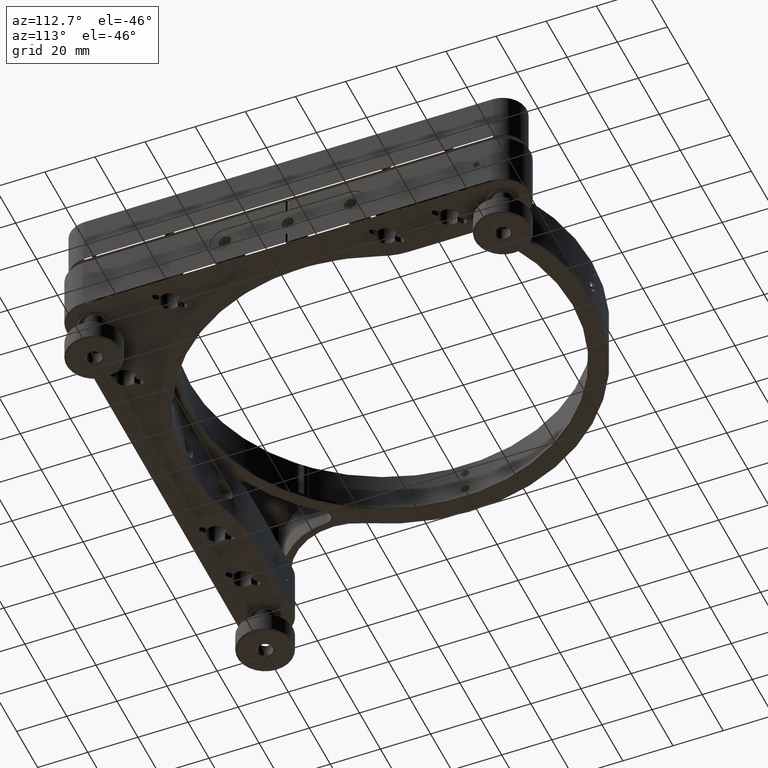
[diagram: clean part render]
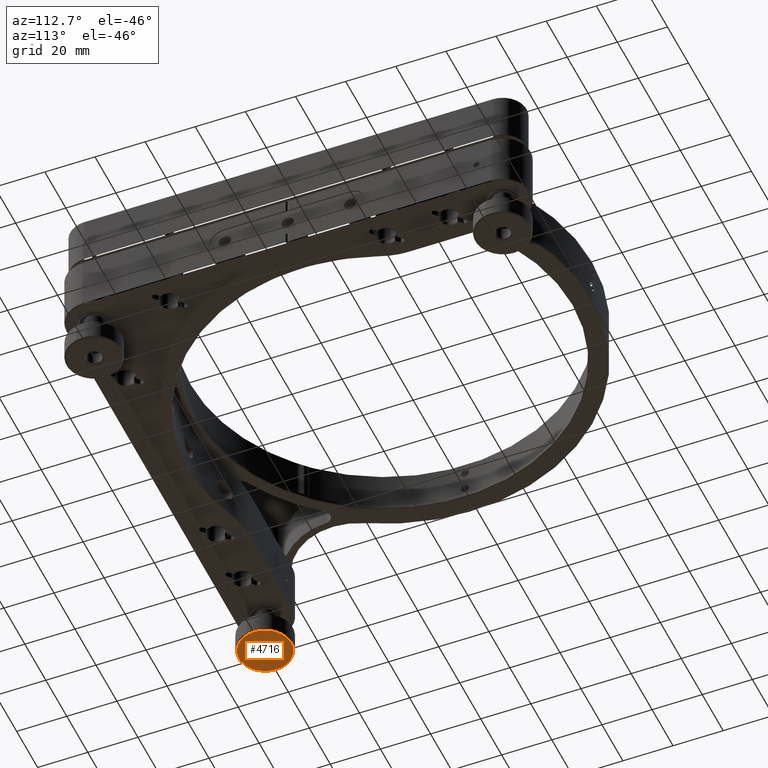
[diagram: same view with one face highlighted and labeled with its STEP entity id]
A machine part, auxiliary view. The second image highlights one B-rep face of the part: STEP entity #4716.
In plain terms, the highlighted planar face has unit normal (0, 0, 1).
Its self-contained STEP definition (entity closure, byte-faithful):
#276 = ORIENTED_EDGE ( 'NONE', *, *, #11625, .T. ) ;
#527 = DIRECTION ( 'NONE',  ( 0.9706386787125577120, -0.2405422112377377797, 0.000000000000000000 ) ) ;
#949 = DIRECTION ( 'NONE',  ( 0.000000000000000000, 0.000000000000000000, 1.000000000000000000 ) ) ;
#1098 = CARTESIAN_POINT ( 'NONE',  ( -84.89723537549394905, -80.65810226066797384, -28.51471862576133276 ) ) ;
#1252 = VERTEX_POINT ( 'NONE', #1098 ) ;
#1355 = DIRECTION ( 'NONE',  ( 0.000000000000000000, 0.000000000000000000, 1.000000000000000000 ) ) ;
#3144 = CARTESIAN_POINT ( 'NONE',  ( -78.10276462450615043, -82.34189773933209722, -28.51471862576133276 ) ) ;
#3314 = CIRCLE ( 'NONE', #5861, 10.49999999999980638 ) ;
#3534 = FACE_OUTER_BOUND ( 'NONE', #3557, .T. ) ;
#3557 = EDGE_LOOP ( 'NONE', ( #7967, #8904 ) ) ;
#4502 = DIRECTION ( 'NONE',  ( 0.000000000000000000, 0.000000000000000000, 1.000000000000000000 ) ) ;
#4558 = EDGE_CURVE ( 'NONE', #11161, #4869, #3314, .T. ) ;
#4716 = ADVANCED_FACE ( 'NONE', ( #11453, #3534 ), #5529, .F. ) ;
#4869 = VERTEX_POINT ( 'NONE', #10788 ) ;
#5170 = AXIS2_PLACEMENT_3D ( 'NONE', #6543, #4502, #5748 ) ;
#5311 = DIRECTION ( 'NONE',  ( -0.000000000000000000, -0.000000000000000000, -1.000000000000000000 ) ) ;
#5529 = PLANE ( 'NONE',  #5872 ) ;
#5550 = CARTESIAN_POINT ( 'NONE',  ( -81.50000000000004263, -81.50000000000002842, -28.51471862576133276 ) ) ;
#5616 = CIRCLE ( 'NONE', #5170, 3.499999999999947153 ) ;
#5748 = DIRECTION ( 'NONE',  ( 0.9706386787125570459, -0.2405422112377396116, 0.000000000000000000 ) ) ;
#5861 = AXIS2_PLACEMENT_3D ( 'NONE', #5550, #6399, #527 ) ;
#5872 = AXIS2_PLACEMENT_3D ( 'NONE', #12483, #1355, #7568 ) ;
#6399 = DIRECTION ( 'NONE',  ( -0.000000000000000000, -0.000000000000000000, -1.000000000000000000 ) ) ;
#6543 = CARTESIAN_POINT ( 'NONE',  ( -81.50000000000004263, -81.50000000000002842, -28.51471862576133276 ) ) ;
#7371 = ORIENTED_EDGE ( 'NONE', *, *, #8750, .T. ) ;
#7426 = CIRCLE ( 'NONE', #12243, 10.49999999999980638 ) ;
#7568 = DIRECTION ( 'NONE',  ( 0.9706386787125577120, -0.2405422112377374466, 0.000000000000000000 ) ) ;
#7606 = EDGE_CURVE ( 'NONE', #4869, #11161, #7426, .T. ) ;
#7967 = ORIENTED_EDGE ( 'NONE', *, *, #4558, .T. ) ;
#8750 = EDGE_CURVE ( 'NONE', #11373, #1252, #5616, .T. ) ;
#8904 = ORIENTED_EDGE ( 'NONE', *, *, #7606, .T. ) ;
#9559 = CIRCLE ( 'NONE', #9771, 3.499999999999947153 ) ;
#9667 = CARTESIAN_POINT ( 'NONE',  ( -71.30829387351836601, -84.02569321799623481, -28.51471862576133276 ) ) ;
#9771 = AXIS2_PLACEMENT_3D ( 'NONE', #10910, #949, #9970 ) ;
#9970 = DIRECTION ( 'NONE',  ( 0.9706386787125570459, -0.2405422112377396116, 0.000000000000000000 ) ) ;
#10383 = DIRECTION ( 'NONE',  ( 0.9706386787125577120, -0.2405422112377377797, 0.000000000000000000 ) ) ;
#10761 = EDGE_LOOP ( 'NONE', ( #276, #7371 ) ) ;
#10788 = CARTESIAN_POINT ( 'NONE',  ( -91.69170612648171925, -78.97430678200383625, -28.51471862576133276 ) ) ;
#10910 = CARTESIAN_POINT ( 'NONE',  ( -81.50000000000004263, -81.50000000000002842, -28.51471862576133276 ) ) ;
#11161 = VERTEX_POINT ( 'NONE', #9667 ) ;
#11373 = VERTEX_POINT ( 'NONE', #3144 ) ;
#11453 = FACE_BOUND ( 'NONE', #10761, .T. ) ;
#11625 = EDGE_CURVE ( 'NONE', #1252, #11373, #9559, .T. ) ;
#12093 = CARTESIAN_POINT ( 'NONE',  ( -81.50000000000004263, -81.50000000000002842, -28.51471862576133276 ) ) ;
#12243 = AXIS2_PLACEMENT_3D ( 'NONE', #12093, #5311, #10383 ) ;
#12483 = CARTESIAN_POINT ( 'NONE',  ( -81.50000000000004263, -81.50000000000002842, -28.51471862576133276 ) ) ;